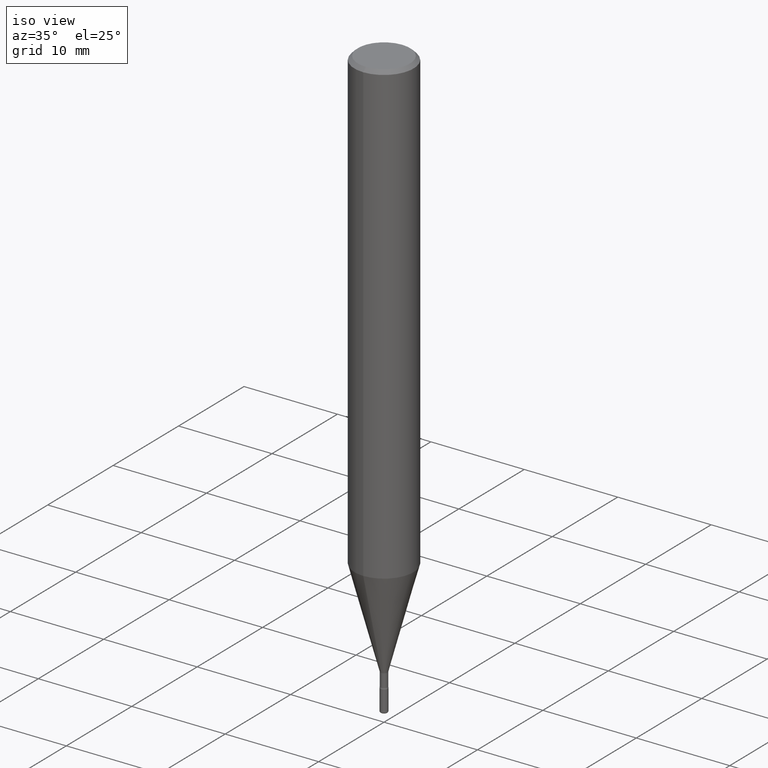
[diagram: clean part render]
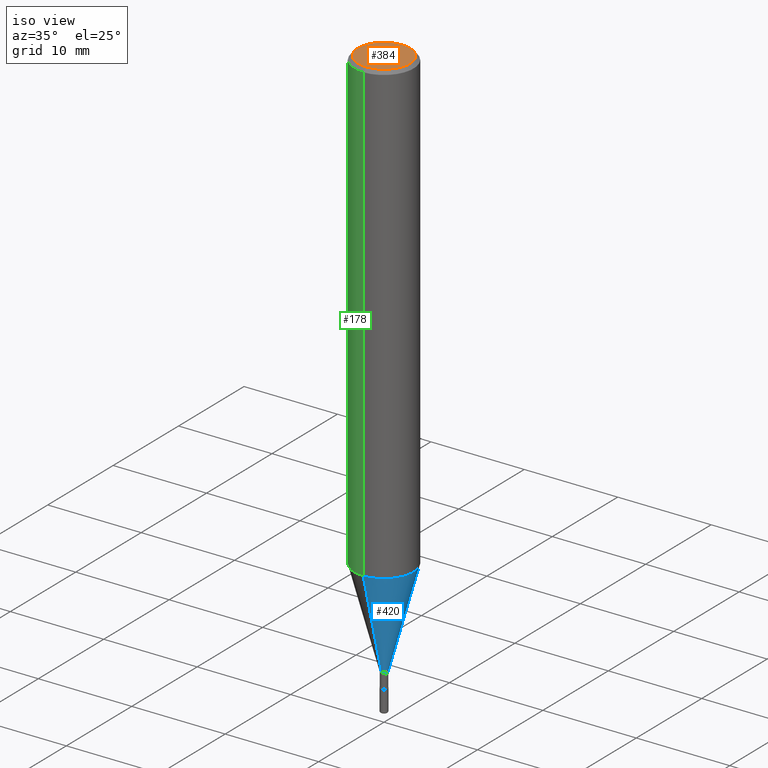
[diagram: same view with three faces highlighted in distinct colors, each labeled with its STEP entity id]
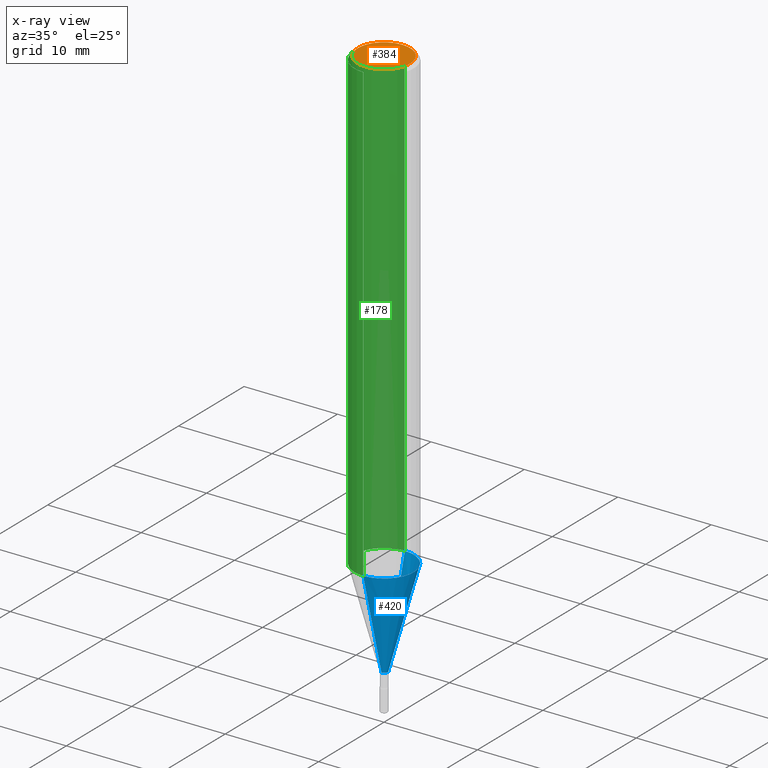
[diagram: x-ray of the same camera — body ghosted, the three highlighted faces saturated]
A machine part, iso view with three faces highlighted in distinct colors.
The next image is the same camera in x-ray (body ghosted, the three faces saturated) — at least one of them is partly hidden behind the body in this view.
Their STEP definitions:

[orange] entity #384 — the highlighted planar face has unit normal (0, -0, -1).
#18 = VERTEX_POINT ( 'NONE', #242 ) ;
#39 = CARTESIAN_POINT ( 'NONE',  ( 3.297419770608785039E-46, -4.702870233423703319E-32, -1.347668562248585984E-17 ) ) ;
#44 = AXIS2_PLACEMENT_3D ( 'NONE', #363, #533, #408 ) ;
#45 = EDGE_LOOP ( 'NONE', ( #255, #352 ) ) ;
#58 = CARTESIAN_POINT ( 'NONE',  ( -8.061085147381546509E-16, -0.1100000000000000006, 3.705806908183951404E-16 ) ) ;
#165 = DIRECTION ( 'NONE',  ( -6.982962677686266711E-15, -1.000000000000000000, 3.491430694917099682E-15 ) ) ;
#242 = CARTESIAN_POINT ( 'NONE',  ( 8.204981146281364568E-16, 0.1100000000000000006, -3.975340620633668508E-16 ) ) ;
#249 = EDGE_CURVE ( 'NONE', #18, #343, #275, .T. ) ;
#255 = ORIENTED_EDGE ( 'NONE', *, *, #249, .T. ) ;
#269 = PLANE ( 'NONE',  #44 ) ;
#275 = CIRCLE ( 'NONE', #517, 0.1100000000000000006 ) ;
#315 = DIRECTION ( 'NONE',  ( -6.982962677686266711E-15, -1.000000000000000000, 3.491430694917099682E-15 ) ) ;
#318 = CARTESIAN_POINT ( 'NONE',  ( 3.297419770608785039E-46, -4.702870233423703319E-32, -1.347668562248585984E-17 ) ) ;
#343 = VERTEX_POINT ( 'NONE', #58 ) ;
#352 = ORIENTED_EDGE ( 'NONE', *, *, #416, .T. ) ;
#363 = CARTESIAN_POINT ( 'NONE',  ( 7.681258945454893776E-16, 0.1100000000000000006, -1.517590198065008793E-16 ) ) ;
#382 = CIRCLE ( 'NONE', #404, 0.1100000000000000006 ) ;
#384 = ADVANCED_FACE ( 'NONE', ( #417 ), #269, .F. ) ;
#404 = AXIS2_PLACEMENT_3D ( 'NONE', #318, #452, #315 ) ;
#408 = DIRECTION ( 'NONE',  ( 6.982962677686265922E-15, 1.000000000000000000, -3.491430694917099288E-15 ) ) ;
#416 = EDGE_CURVE ( 'NONE', #343, #18, #382, .T. ) ;
#417 = FACE_OUTER_BOUND ( 'NONE', #45, .T. ) ;
#452 = DIRECTION ( 'NONE',  ( -2.445504170649679612E-29, 3.491430694917099682E-15, 1.000000000000000000 ) ) ;
#517 = AXIS2_PLACEMENT_3D ( 'NONE', #39, #562, #165 ) ;
#533 = DIRECTION ( 'NONE',  ( 2.445504170649679612E-29, -3.491430694917099288E-15, -1.000000000000000000 ) ) ;
#562 = DIRECTION ( 'NONE',  ( -2.445504170649679612E-29, 3.491430694917099682E-15, 1.000000000000000000 ) ) ;

[blue] entity #420 — the highlighted conical surface has half-angle 15 deg.
#25 = CIRCLE ( 'NONE', #480, 0.01516111260566397993 ) ;
#31 = EDGE_CURVE ( 'NONE', #48, #134, #43, .T. ) ;
#37 = CARTESIAN_POINT ( 'NONE',  ( 1.077261842800115440E-16, 0.01516111260565579898, -2.343092501787273463 ) ) ;
#42 = VERTEX_POINT ( 'NONE', #473 ) ;
#43 = CIRCLE ( 'NONE', #115, 0.1250000000000000000 ) ;
#48 = VERTEX_POINT ( 'NONE', #69 ) ;
#59 = ORIENTED_EDGE ( 'NONE', *, *, #220, .T. ) ;
#69 = CARTESIAN_POINT ( 'NONE',  ( -8.728703347107362044E-16, -0.1250000000000067724, -1.933168193384775080 ) ) ;
#89 = FACE_OUTER_BOUND ( 'NONE', #256, .T. ) ;
#92 = LINE ( 'NONE', #278, #118 ) ;
#115 = AXIS2_PLACEMENT_3D ( 'NONE', #337, #212, #516 ) ;
#118 = VECTOR ( 'NONE', #272, 39.37007874015748854 ) ;
#134 = VERTEX_POINT ( 'NONE', #157 ) ;
#135 = CARTESIAN_POINT ( 'NONE',  ( -1.058694834774930434E-16, -0.01516111260567216089, -2.343092501787273463 ) ) ;
#140 = CARTESIAN_POINT ( 'NONE',  ( 5.730042485338768716E-29, -8.180745081770186080E-15, -2.343092501787273463 ) ) ;
#156 = ORIENTED_EDGE ( 'NONE', *, *, #426, .F. ) ;
#157 = CARTESIAN_POINT ( 'NONE',  ( 8.881784197001723668E-16, 0.1249999999999932554, -1.933168193384776190 ) ) ;
#175 = DIRECTION ( 'NONE',  ( -2.445504170649679612E-29, 3.491430694917099682E-15, 1.000000000000000000 ) ) ;
#212 = DIRECTION ( 'NONE',  ( -2.445504170649679612E-29, 3.491430694917099682E-15, 1.000000000000000000 ) ) ;
#214 = DIRECTION ( 'NONE',  ( 1.839019923739598738E-15, 0.2588190451025247363, 0.9659258262890673130 ) ) ;
#220 = EDGE_CURVE ( 'NONE', #409, #42, #25, .T. ) ;
#240 = EDGE_CURVE ( 'NONE', #42, #134, #529, .T. ) ;
#256 = EDGE_LOOP ( 'NONE', ( #59, #446, #423, #156 ) ) ;
#257 = CARTESIAN_POINT ( 'NONE',  ( 5.730042485338768716E-29, -8.180745081770186080E-15, -2.343092501787273463 ) ) ;
#272 = DIRECTION ( 'NONE',  ( -1.807323732225328562E-15, -0.2588190451025179639, 0.9659258262890690894 ) ) ;
#278 = CARTESIAN_POINT ( 'NONE',  ( -1.058694834774930434E-16, -0.01516111260567216089, -2.343092501787273463 ) ) ;
#293 = VECTOR ( 'NONE', #214, 39.37007874015748854 ) ;
#325 = CONICAL_SURFACE ( 'NONE', #374, 0.01516111260566397993, 0.2617993877991500740 ) ;
#337 = CARTESIAN_POINT ( 'NONE',  ( 4.727570879489775223E-29, -6.749522768821041427E-15, -1.933168193384775746 ) ) ;
#374 = AXIS2_PLACEMENT_3D ( 'NONE', #140, #411, #497 ) ;
#409 = VERTEX_POINT ( 'NONE', #135 ) ;
#411 = DIRECTION ( 'NONE',  ( -2.445504170649679612E-29, 3.491430694917099682E-15, 1.000000000000000000 ) ) ;
#420 = ADVANCED_FACE ( 'NONE', ( #89 ), #325, .T. ) ;
#423 = ORIENTED_EDGE ( 'NONE', *, *, #31, .F. ) ;
#426 = EDGE_CURVE ( 'NONE', #409, #48, #92, .T. ) ;
#446 = ORIENTED_EDGE ( 'NONE', *, *, #240, .T. ) ;
#473 = CARTESIAN_POINT ( 'NONE',  ( 4.979523019900923560E-16, 0.01516111260565579898, -2.343092501787273463 ) ) ;
#480 = AXIS2_PLACEMENT_3D ( 'NONE', #257, #175, #481 ) ;
#481 = DIRECTION ( 'NONE',  ( -6.982962677686266711E-15, -1.000000000000000000, 0.000000000000000000 ) ) ;
#497 = DIRECTION ( 'NONE',  ( -6.982962677686266711E-15, -1.000000000000000000, 0.000000000000000000 ) ) ;
#516 = DIRECTION ( 'NONE',  ( -6.982962677686265922E-15, -1.000000000000000000, 4.370956789862821150E-15 ) ) ;
#529 = LINE ( 'NONE', #37, #293 ) ;

[green] entity #178 — the highlighted cylindrical surface (edge-blend (fillet) strip) has radius 3.175 mm, axis along (-0, 0, 1).
#14 = LINE ( 'NONE', #183, #230 ) ;
#24 = CYLINDRICAL_SURFACE ( 'NONE', #346, 0.1250000000000000000 ) ;
#27 = CARTESIAN_POINT ( 'NONE',  ( 4.727570879489775223E-29, -6.749522768821041427E-15, -1.933168193384775746 ) ) ;
#30 = DIRECTION ( 'NONE',  ( -2.445504170649679612E-29, 3.491430694917099682E-15, 1.000000000000000000 ) ) ;
#36 = AXIS2_PLACEMENT_3D ( 'NONE', #253, #104, #462 ) ;
#48 = VERTEX_POINT ( 'NONE', #69 ) ;
#51 = EDGE_CURVE ( 'NONE', #164, #174, #73, .T. ) ;
#62 = CARTESIAN_POINT ( 'NONE',  ( 8.881784197001729584E-16, 0.1249999999999999584, -0.01500000000000044874 ) ) ;
#64 = FACE_OUTER_BOUND ( 'NONE', #531, .T. ) ;
#69 = CARTESIAN_POINT ( 'NONE',  ( -8.728703347107362044E-16, -0.1250000000000067724, -1.933168193384775080 ) ) ;
#73 = CIRCLE ( 'NONE', #36, 0.1250000000000000000 ) ;
#97 = AXIS2_PLACEMENT_3D ( 'NONE', #27, #30, #113 ) ;
#104 = DIRECTION ( 'NONE',  ( -2.445504170649679612E-29, 3.491430694917099682E-15, 1.000000000000000000 ) ) ;
#113 = DIRECTION ( 'NONE',  ( -6.982962677686265922E-15, -1.000000000000000000, 4.370956789862821150E-15 ) ) ;
#134 = VERTEX_POINT ( 'NONE', #157 ) ;
#151 = CARTESIAN_POINT ( 'NONE',  ( -8.728703347107828458E-16, -0.1250000000000000555, -0.01499999999999957791 ) ) ;
#157 = CARTESIAN_POINT ( 'NONE',  ( 8.881784197001723668E-16, 0.1249999999999932554, -1.933168193384776190 ) ) ;
#164 = VERTEX_POINT ( 'NONE', #62 ) ;
#174 = VERTEX_POINT ( 'NONE', #151 ) ;
#178 = ADVANCED_FACE ( 'NONE', ( #64 ), #24, .T. ) ;
#183 = CARTESIAN_POINT ( 'NONE',  ( 8.881784197001251337E-16, 0.1250000000000000000, 4.164456202660859682E-17 ) ) ;
#195 = ORIENTED_EDGE ( 'NONE', *, *, #490, .T. ) ;
#204 = CARTESIAN_POINT ( 'NONE',  ( -1.169113584055446105E-44, 1.669184350826100908E-30, 4.780733988912460139E-16 ) ) ;
#230 = VECTOR ( 'NONE', #232, 39.37007874015748143 ) ;
#232 = DIRECTION ( 'NONE',  ( -2.445504170649679332E-29, 3.491430694917099288E-15, 1.000000000000000000 ) ) ;
#253 = CARTESIAN_POINT ( 'NONE',  ( 3.668256255974522361E-31, -5.237146042375653862E-17, -0.01500000000000001332 ) ) ;
#258 = ORIENTED_EDGE ( 'NONE', *, *, #378, .T. ) ;
#280 = DIRECTION ( 'NONE',  ( -2.445504170649679332E-29, 3.491430694917099288E-15, 1.000000000000000000 ) ) ;
#298 = ORIENTED_EDGE ( 'NONE', *, *, #319, .F. ) ;
#300 = CIRCLE ( 'NONE', #97, 0.1250000000000000000 ) ;
#319 = EDGE_CURVE ( 'NONE', #134, #164, #14, .T. ) ;
#330 = DIRECTION ( 'NONE',  ( -6.982962677686265922E-15, -1.000000000000000000, 3.491430694917099682E-15 ) ) ;
#346 = AXIS2_PLACEMENT_3D ( 'NONE', #204, #472, #330 ) ;
#356 = LINE ( 'NONE', #458, #501 ) ;
#378 = EDGE_CURVE ( 'NONE', #48, #174, #356, .T. ) ;
#458 = CARTESIAN_POINT ( 'NONE',  ( -8.728703347107832402E-16, -0.1250000000000000000, 9.145022357558835235E-16 ) ) ;
#462 = DIRECTION ( 'NONE',  ( -6.982962677686265922E-15, -1.000000000000000000, 3.483106191921935554E-15 ) ) ;
#472 = DIRECTION ( 'NONE',  ( -2.445504170649679612E-29, 3.491430694917099682E-15, 1.000000000000000000 ) ) ;
#490 = EDGE_CURVE ( 'NONE', #134, #48, #300, .T. ) ;
#501 = VECTOR ( 'NONE', #280, 39.37007874015748143 ) ;
#531 = EDGE_LOOP ( 'NONE', ( #298, #195, #258, #559 ) ) ;
#559 = ORIENTED_EDGE ( 'NONE', *, *, #51, .F. ) ;